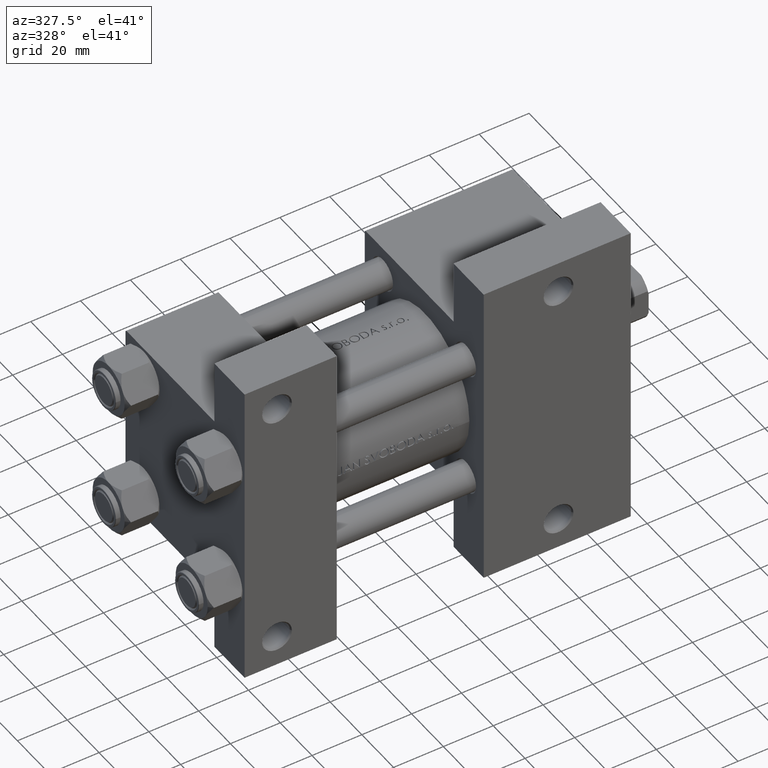
[diagram: clean part render]
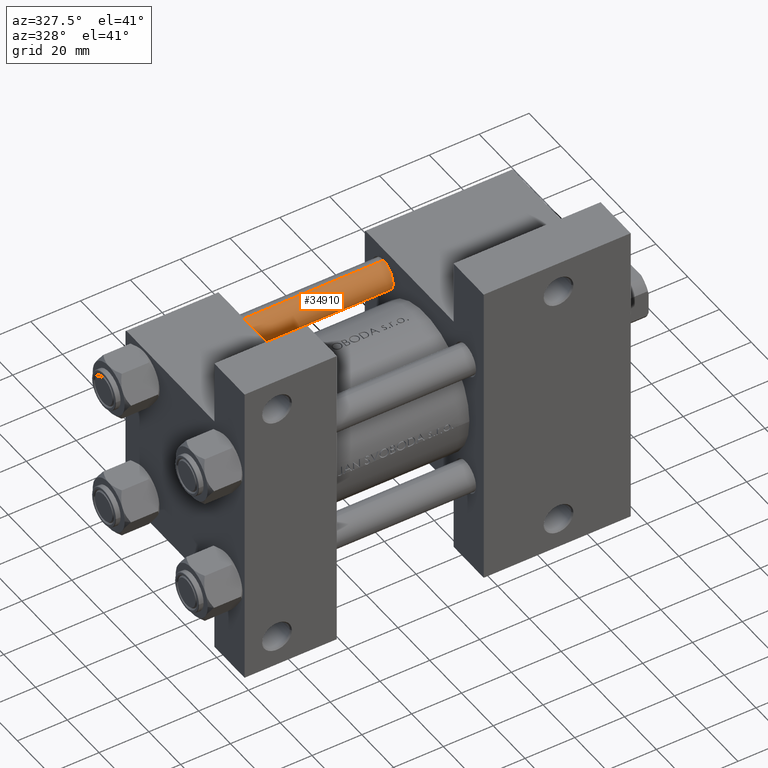
[diagram: same view with one face highlighted and labeled with its STEP entity id]
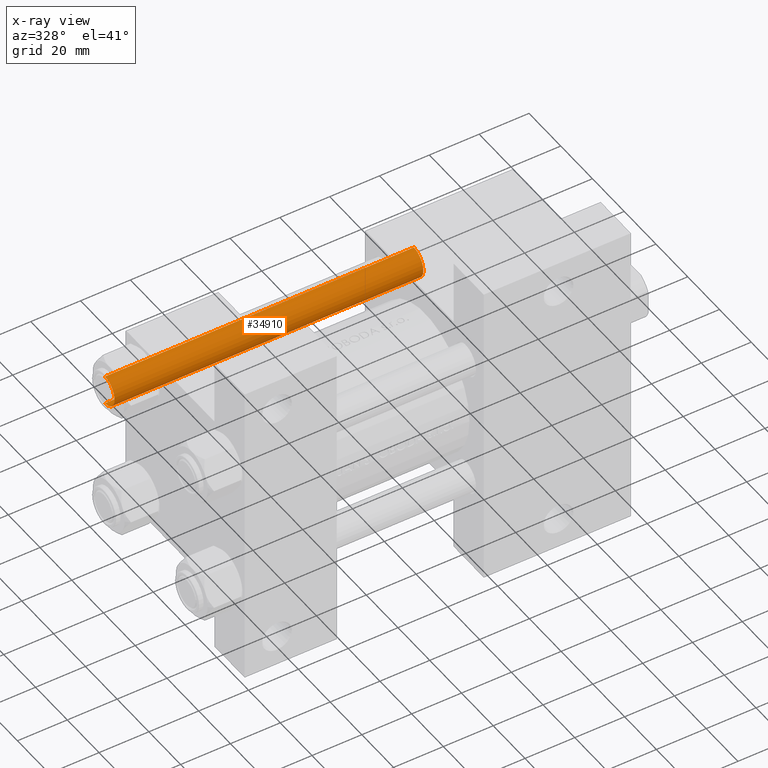
[diagram: x-ray of the same camera — body ghosted, the highlighted face saturated]
A machine part, auxiliary view. The second image highlights one B-rep face of the part: STEP entity #34910.
The next image is the same camera in x-ray: the body ghosted, the highlighted face saturated — about 0% of this face is hidden behind the body in this view.
In plain terms, the highlighted cylindrical surface (edge-blend (fillet) strip) has radius 6 mm, axis along (-1, -0, -0).
Its self-contained STEP definition (entity closure, byte-faithful):
#3797 = VERTEX_POINT ( 'NONE', #17511 ) ;
#4155 = ORIENTED_EDGE ( 'NONE', *, *, #39926, .T. ) ;
#4682 = AXIS2_PLACEMENT_3D ( 'NONE', #48861, #34718, #45388 ) ;
#5096 = CARTESIAN_POINT ( 'NONE',  ( -6.000000000000000888, 0.000000000000000000, 125.0000000000000000 ) ) ;
#5425 = CIRCLE ( 'NONE', #26038, 6.000000000000000888 ) ;
#6225 = CARTESIAN_POINT ( 'NONE',  ( 0.000000000000000000, 0.000000000000000000, 124.5000000000000000 ) ) ;
#8169 = CARTESIAN_POINT ( 'NONE',  ( 6.000000000000000888, 7.347880794884120722E-16, 125.0000000000000000 ) ) ;
#13409 = EDGE_CURVE ( 'NONE', #18222, #30415, #38182, .T. ) ;
#13757 = FACE_OUTER_BOUND ( 'NONE', #32067, .T. ) ;
#15971 = CARTESIAN_POINT ( 'NONE',  ( 6.000000000000000888, 7.347880794884120722E-16, 0.4999999999999865663 ) ) ;
#16436 = ORIENTED_EDGE ( 'NONE', *, *, #23953, .T. ) ;
#17013 = VECTOR ( 'NONE', #46104, 1000.000000000000000 ) ;
#17511 = CARTESIAN_POINT ( 'NONE',  ( -6.000000000000000888, 0.000000000000000000, 124.5000000000000000 ) ) ;
#18222 = VERTEX_POINT ( 'NONE', #25331 ) ;
#20242 = DIRECTION ( 'NONE',  ( -0.000000000000000000, -0.000000000000000000, -1.000000000000000000 ) ) ;
#20975 = CARTESIAN_POINT ( 'NONE',  ( 0.000000000000000000, 0.000000000000000000, 125.0000000000000000 ) ) ;
#23115 = AXIS2_PLACEMENT_3D ( 'NONE', #20975, #47734, #36574 ) ;
#23953 = EDGE_CURVE ( 'NONE', #3797, #39296, #43021, .T. ) ;
#24935 = CYLINDRICAL_SURFACE ( 'NONE', #23115, 6.000000000000000888 ) ;
#25331 = CARTESIAN_POINT ( 'NONE',  ( 6.000000000000000888, 7.347880794884120722E-16, 124.5000000000000000 ) ) ;
#26038 = AXIS2_PLACEMENT_3D ( 'NONE', #6225, #32526, #43909 ) ;
#26678 = CARTESIAN_POINT ( 'NONE',  ( -6.000000000000000888, 0.000000000000000000, 0.4999999999999865663 ) ) ;
#28286 = ORIENTED_EDGE ( 'NONE', *, *, #38910, .T. ) ;
#29739 = ORIENTED_EDGE ( 'NONE', *, *, #13409, .F. ) ;
#30415 = VERTEX_POINT ( 'NONE', #15971 ) ;
#32067 = EDGE_LOOP ( 'NONE', ( #29739, #28286, #16436, #4155 ) ) ;
#32526 = DIRECTION ( 'NONE',  ( 0.000000000000000000, 0.000000000000000000, -1.000000000000000000 ) ) ;
#34718 = DIRECTION ( 'NONE',  ( -0.000000000000000000, -0.000000000000000000, 1.000000000000000000 ) ) ;
#34910 = ADVANCED_FACE ( 'NONE', ( #13757 ), #24935, .T. ) ;
#36574 = DIRECTION ( 'NONE',  ( -1.000000000000000000, 0.000000000000000000, 0.000000000000000000 ) ) ;
#38182 = LINE ( 'NONE', #8169, #17013 ) ;
#38910 = EDGE_CURVE ( 'NONE', #18222, #3797, #5425, .T. ) ;
#39296 = VERTEX_POINT ( 'NONE', #26678 ) ;
#39926 = EDGE_CURVE ( 'NONE', #39296, #30415, #46655, .T. ) ;
#43021 = LINE ( 'NONE', #5096, #48099 ) ;
#43909 = DIRECTION ( 'NONE',  ( 1.000000000000000000, 0.000000000000000000, 0.000000000000000000 ) ) ;
#45388 = DIRECTION ( 'NONE',  ( 1.000000000000000000, 0.000000000000000000, 0.000000000000000000 ) ) ;
#46104 = DIRECTION ( 'NONE',  ( -0.000000000000000000, -0.000000000000000000, -1.000000000000000000 ) ) ;
#46655 = CIRCLE ( 'NONE', #4682, 6.000000000000000888 ) ;
#47734 = DIRECTION ( 'NONE',  ( -0.000000000000000000, -0.000000000000000000, -1.000000000000000000 ) ) ;
#48099 = VECTOR ( 'NONE', #20242, 1000.000000000000000 ) ;
#48861 = CARTESIAN_POINT ( 'NONE',  ( 0.000000000000000000, 0.000000000000000000, 0.4999999999999865663 ) ) ;